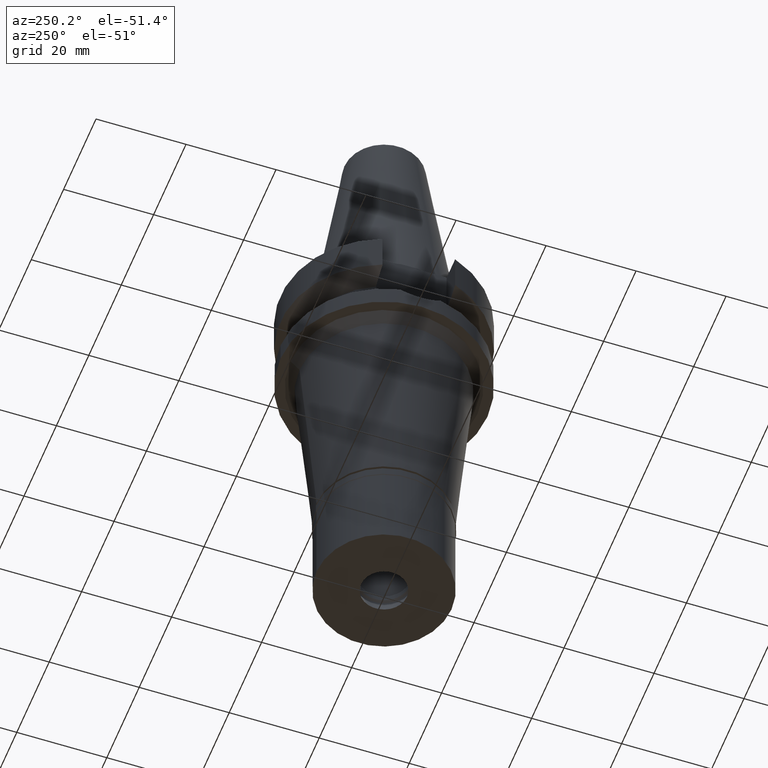
[diagram: clean part render]
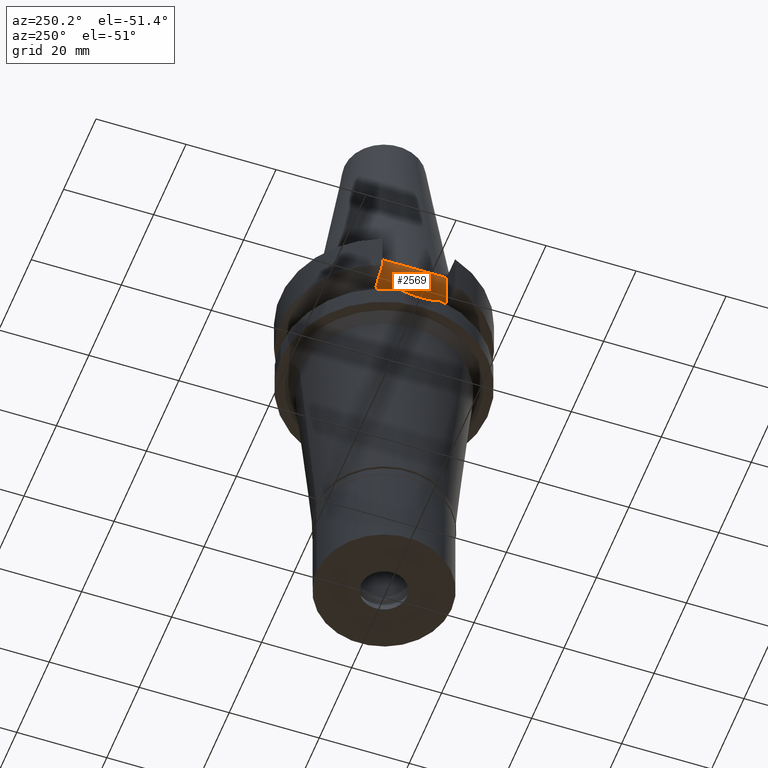
[diagram: same view with one face highlighted and labeled with its STEP entity id]
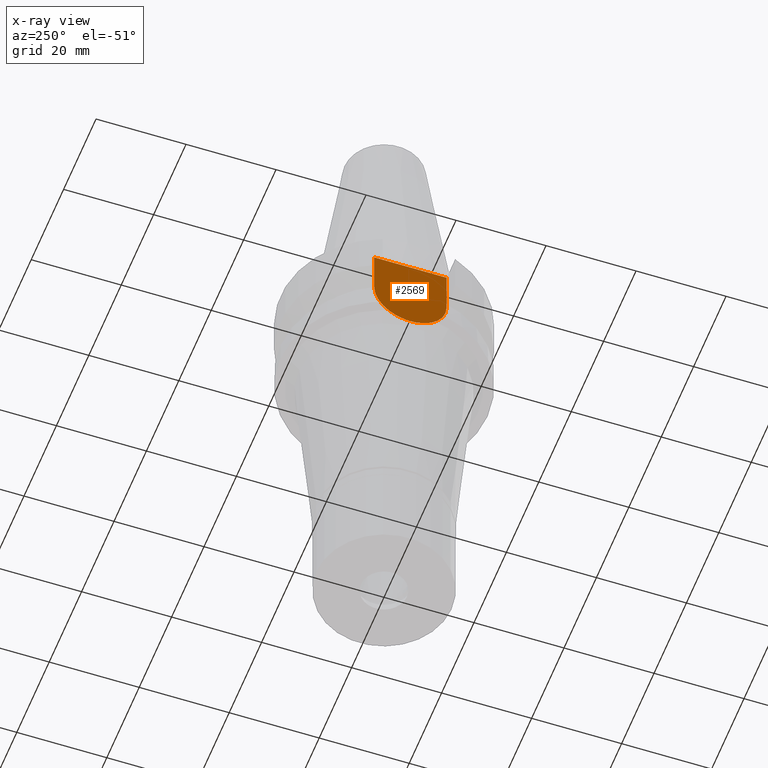
[diagram: x-ray of the same camera — body ghosted, the highlighted face saturated]
A machine part, auxiliary view. The second image highlights one B-rep face of the part: STEP entity #2569.
The next image is the same camera in x-ray: the body ghosted, the highlighted face saturated — about 0% of this face is hidden behind the body in this view.
In plain terms, the highlighted planar face has unit normal (-1, 0, 0).
Its self-contained STEP definition (entity closure, byte-faithful):
#269 = EDGE_CURVE ( 'NONE', #1686, #3018, #1858, .T. ) ;
#270 = DIRECTION ( 'NONE',  ( -1.000000000000000000, 0.0000000000000000000, 0.0000000000000000000 ) ) ;
#350 = AXIS2_PLACEMENT_3D ( 'NONE', #1448, #270, #2164 ) ;
#423 = DIRECTION ( 'NONE',  ( 0.0000000000000000000, -1.000000000000000000, 0.0000000000000000000 ) ) ;
#428 = LINE ( 'NONE', #1655, #1925 ) ;
#450 = CARTESIAN_POINT ( 'NONE',  ( -16.29999999999999716, -8.050000000000000711, -1.000000000000000000 ) ) ;
#459 = DIRECTION ( 'NONE',  ( 0.0000000000000000000, 1.000000000000000000, 0.0000000000000000000 ) ) ;
#679 = EDGE_CURVE ( 'NONE', #1686, #1837, #1724, .T. ) ;
#838 = CIRCLE ( 'NONE', #1491, 8.050000000000000711 ) ;
#966 = DIRECTION ( 'NONE',  ( 0.0000000000000000000, 0.0000000000000000000, 1.000000000000000000 ) ) ;
#1114 = ORIENTED_EDGE ( 'NONE', *, *, #2534, .F. ) ;
#1327 = EDGE_LOOP ( 'NONE', ( #2440, #1114, #2930, #2195 ) ) ;
#1424 = VECTOR ( 'NONE', #459, 1000.000000000000000 ) ;
#1448 = CARTESIAN_POINT ( 'NONE',  ( -16.29999999999999716, 0.0000000000000000000, 0.0000000000000000000 ) ) ;
#1475 = FACE_OUTER_BOUND ( 'NONE', #1327, .T. ) ;
#1491 = AXIS2_PLACEMENT_3D ( 'NONE', #2586, #2552, #423 ) ;
#1512 = CARTESIAN_POINT ( 'NONE',  ( -16.29999999999999716, -8.050000000000000711, -10.94999999999999929 ) ) ;
#1652 = CARTESIAN_POINT ( 'NONE',  ( -16.29999999999999716, -8.050000000000000711, -1.000000000000000000 ) ) ;
#1655 = CARTESIAN_POINT ( 'NONE',  ( -16.29999999999999716, 8.050000000000000711, -10.94999999999999929 ) ) ;
#1686 = VERTEX_POINT ( 'NONE', #450 ) ;
#1696 = CARTESIAN_POINT ( 'NONE',  ( -16.29999999999999716, -8.050000000000000711, -1.000000000000000000 ) ) ;
#1724 = LINE ( 'NONE', #1696, #2520 ) ;
#1837 = VERTEX_POINT ( 'NONE', #1512 ) ;
#1858 = LINE ( 'NONE', #1652, #1424 ) ;
#1925 = VECTOR ( 'NONE', #966, 1000.000000000000000 ) ;
#1959 = VERTEX_POINT ( 'NONE', #2543 ) ;
#2150 = EDGE_CURVE ( 'NONE', #1959, #3018, #428, .T. ) ;
#2164 = DIRECTION ( 'NONE',  ( 0.0000000000000000000, 0.0000000000000000000, 1.000000000000000000 ) ) ;
#2195 = ORIENTED_EDGE ( 'NONE', *, *, #269, .T. ) ;
#2414 = DIRECTION ( 'NONE',  ( 0.0000000000000000000, 0.0000000000000000000, -1.000000000000000000 ) ) ;
#2426 = PLANE ( 'NONE',  #350 ) ;
#2440 = ORIENTED_EDGE ( 'NONE', *, *, #2150, .F. ) ;
#2517 = CARTESIAN_POINT ( 'NONE',  ( -16.29999999999999716, 8.050000000000000711, -1.000000000000000000 ) ) ;
#2520 = VECTOR ( 'NONE', #2414, 1000.000000000000000 ) ;
#2534 = EDGE_CURVE ( 'NONE', #1837, #1959, #838, .T. ) ;
#2543 = CARTESIAN_POINT ( 'NONE',  ( -16.29999999999999716, 8.050000000000000711, -10.94999999999999929 ) ) ;
#2552 = DIRECTION ( 'NONE',  ( 1.000000000000000000, 0.0000000000000000000, 0.0000000000000000000 ) ) ;
#2569 = ADVANCED_FACE ( 'NONE', ( #1475 ), #2426, .T. ) ;
#2586 = CARTESIAN_POINT ( 'NONE',  ( -16.29999999999999716, 0.0000000000000000000, -10.94999999999999929 ) ) ;
#2930 = ORIENTED_EDGE ( 'NONE', *, *, #679, .F. ) ;
#3018 = VERTEX_POINT ( 'NONE', #2517 ) ;